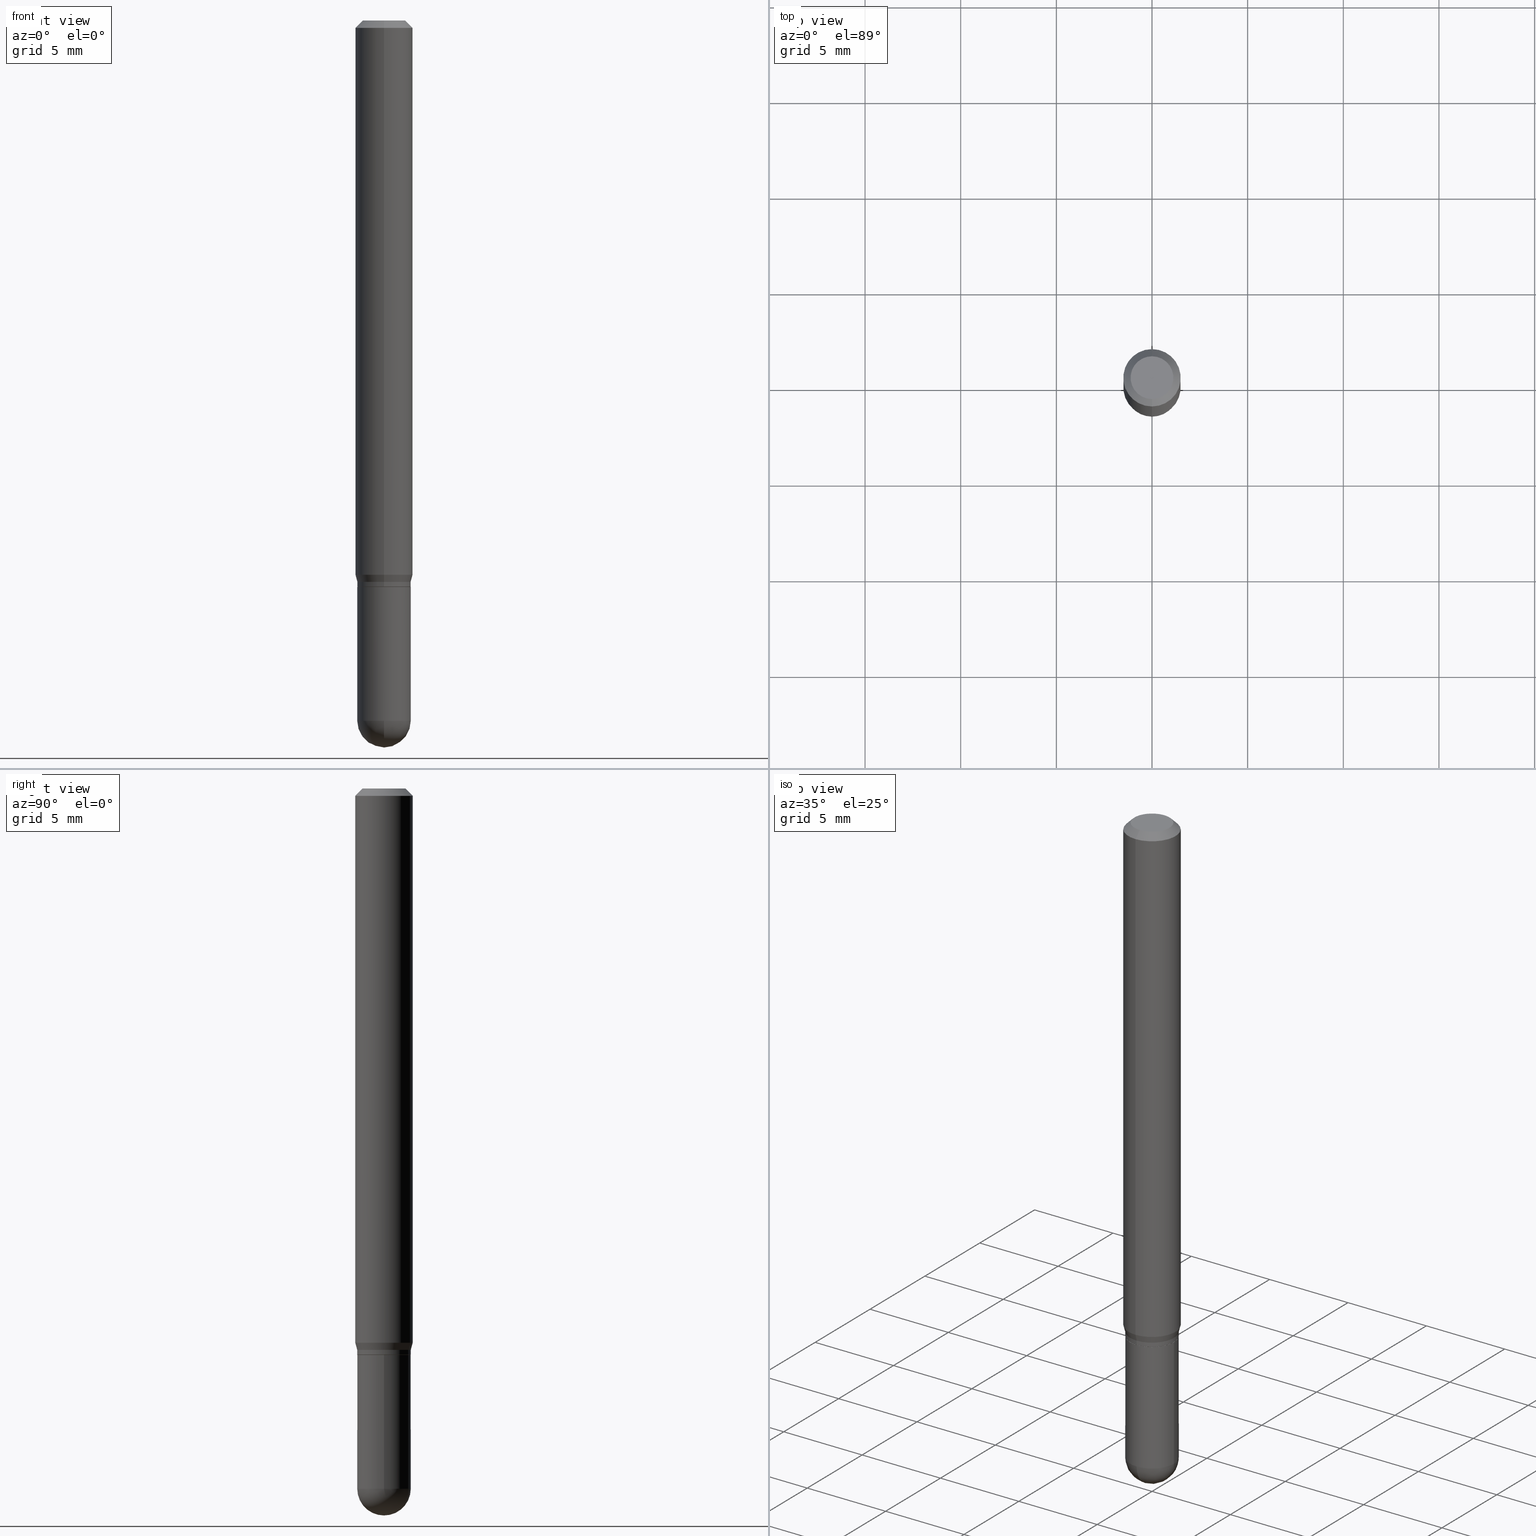
[diagram: canonical four-view strip — front | top / right | iso, engineering-drawing reading convention]
A machine part, canonical four-view strip (front | top / right | iso — engineering-drawing reading convention). The complete STEP part file that produces these views, byte-faithful:
ISO-10303-21;
HEADER;
FILE_DESCRIPTION (( 'STEP AP203' ),
    '1' );
FILE_NAME ('02977.STEP',
    '2024-03-07T22:15:55',
    ( '' ),
    ( '' ),
    'SwSTEP 2.0',
    'SolidWorks 2023',
    '' );
FILE_SCHEMA (( 'CONFIG_CONTROL_DESIGN' ));
ENDSEC;

DATA;
#1 = ORIENTED_EDGE ( 'NONE', *, *, #266, .F. ) ;
#2 = AXIS2_PLACEMENT_3D ( 'NONE', #252, #88, #367 ) ;
#3 = PERSON_AND_ORGANIZATION_ROLE ( 'design_owner' ) ;
#4 = CARTESIAN_POINT ( 'NONE',  ( 2.849949346728157749E-29, -4.068972352287801446E-15, -1.165399999999999991 ) ) ;
#5 = VERTEX_POINT ( 'NONE', #387 ) ;
#6 = DIRECTION ( 'NONE',  ( 2.445432111437345549E-29, -3.491533887810517591E-15, -1.000000000000000000 ) ) ;
#7 = ORIENTED_EDGE ( 'NONE', *, *, #89, .T. ) ;
#8 = CARTESIAN_POINT ( 'NONE',  ( -4.123439461173739834E-16, -0.05904999999999999832, 2.061750760752110574E-16 ) ) ;
#9 = VERTEX_POINT ( 'NONE', #27 ) ;
#10 = CIRCLE ( 'NONE', #194, 0.05510000000000001702 ) ;
#11 = ADVANCED_FACE ( 'NONE', ( #343 ), #320, .T. ) ;
#12 = DIRECTION ( 'NONE',  ( -2.445432111437345549E-29, 3.491533887810517197E-15, 1.000000000000000000 ) ) ;
#13 = EDGE_CURVE ( 'NONE', #127, #473, #128, .T. ) ;
#14 = PLANE ( 'NONE',  #111 ) ;
#15 = CC_DESIGN_PERSON_AND_ORGANIZATION_ASSIGNMENT ( #72, #3, ( #394 ) ) ;
#16 = DIRECTION ( 'NONE',  ( 1.000000000000000000, -7.105427357601001070E-15, 4.926315508542082329E-29 ) ) ;
#17 = VECTOR ( 'NONE', #363, 39.37007874015748143 ) ;
#18 = DIRECTION ( 'NONE',  ( -6.982962677686265133E-15, -1.000000000000000000, 3.491533887810517591E-15 ) ) ;
#19 = CYLINDRICAL_SURFACE ( 'NONE', #280, 0.05510000000000006559 ) ;
#20 = CARTESIAN_POINT ( 'NONE',  ( -0.05510000000000001702, -4.158589433376571291E-15, -1.440999999999999837 ) ) ;
#21 = EDGE_LOOP ( 'NONE', ( #459, #277, #250, #322 ) ) ;
#22 = SPHERICAL_SURFACE ( 'NONE', #135, 0.05509999999999996151 ) ;
#23 = VECTOR ( 'NONE', #123, 39.37007874015748143 ) ;
#24 = DIRECTION ( 'NONE',  ( -1.000000000000000000, 6.982962677686265922E-15, -4.883557194083112340E-29 ) ) ;
#25 = ORIENTED_EDGE ( 'NONE', *, *, #428, .T. ) ;
#26 = DATE_AND_TIME ( #315, #94 ) ;
#27 = CARTESIAN_POINT ( 'NONE',  ( 0.05510000000000000314, -4.453733595828315821E-15, -1.165399999999999991 ) ) ;
#28 = DATE_AND_TIME ( #308, #302 ) ;
#29 = AXIS2_PLACEMENT_3D ( 'NONE', #144, #53, #419 ) ;
#30 = AXIS2_PLACEMENT_3D ( 'NONE', #45, #370, #405 ) ;
#31 = CARTESIAN_POINT ( 'NONE',  ( 3.915090474038502304E-16, 0.05509999999999495857, -1.441000000000000059 ) ) ;
#32 = VERTEX_POINT ( 'NONE', #393 ) ;
#33 = APPLICATION_CONTEXT ( 'configuration controlled 3d designs of mechanical parts and assemblies' ) ;
#34 =( NAMED_UNIT ( * ) SI_UNIT ( $, .STERADIAN. ) SOLID_ANGLE_UNIT ( ) );
#35 = DIRECTION ( 'NONE',  ( -2.445432111437345549E-29, 3.491533887810517591E-15, 1.000000000000000000 ) ) ;
#36 = DIRECTION ( 'NONE',  ( -6.982962677686265922E-15, -1.000000000000000000, 2.501692301890350751E-15 ) ) ;
#37 = CONICAL_SURFACE ( 'NONE', #192, 0.05460000000000000270, 0.7853981633974739252 ) ;
#38 = DIRECTION ( 'NONE',  ( -2.445432111437345549E-29, 3.491533887810517591E-15, 1.000000000000000000 ) ) ;
#39 = ADVANCED_FACE ( 'NONE', ( #429 ), #235, .T. ) ;
#40 = DIRECTION ( 'NONE',  ( -2.445432111437345549E-29, 3.491533887810517591E-15, 1.000000000000000000 ) ) ;
#41 = FACE_OUTER_BOUND ( 'NONE', #314, .T. ) ;
#42 = APPROVAL_PERSON_ORGANIZATION ( #158, #161, #283 ) ;
#43 = AXIS2_PLACEMENT_3D ( 'NONE', #163, #431, #193 ) ;
#44 = VECTOR ( 'NONE', #222, 39.37007874015748143 ) ;
#45 = CARTESIAN_POINT ( 'NONE',  ( 3.668148167156040884E-31, -5.237300831715808113E-17, -0.01500000000000009139 ) ) ;
#46 = DIRECTION ( 'NONE',  ( -6.982962677686266711E-15, -1.000000000000000000, 2.478990919840526156E-15 ) ) ;
#47 = ORIENTED_EDGE ( 'NONE', *, *, #350, .F. ) ;
#48 = FACE_OUTER_BOUND ( 'NONE', #461, .T. ) ;
#49 = AXIS2_PLACEMENT_3D ( 'NONE', #218, #205, #129 ) ;
#50 = CARTESIAN_POINT ( 'NONE',  ( 2.241544163518574248E-45, -3.200427184768119110E-31, -9.166249813416686036E-17 ) ) ;
#51 = CIRCLE ( 'NONE', #372, 0.05510000000000006559 ) ;
#52 = EDGE_LOOP ( 'NONE', ( #179, #134, #118, #1 ) ) ;
#53 = DIRECTION ( 'NONE',  ( -2.445468806185136597E-29, 3.491481338843145583E-15, 1.000000000000000000 ) ) ;
#54 = ADVANCED_FACE ( 'NONE', ( #117 ), #196, .T. ) ;
#55 = CC_DESIGN_PERSON_AND_ORGANIZATION_ASSIGNMENT ( #358, #151, ( #256 ) ) ;
#56 = DIRECTION ( 'NONE',  ( -2.445468806185136597E-29, 3.491481338843145583E-15, 1.000000000000000000 ) ) ;
#57 = VERTEX_POINT ( 'NONE', #440 ) ;
#58 = AXIS2_PLACEMENT_3D ( 'NONE', #275, #244, #403 ) ;
#59 = CYLINDRICAL_SURFACE ( 'NONE', #355, 0.05510000000000006559 ) ;
#60 = ORIENTED_EDGE ( 'NONE', *, *, #509, .T. ) ;
#61 = DIRECTION ( 'NONE',  ( -6.982962677686265922E-15, -1.000000000000000000, 3.491533887810517591E-15 ) ) ;
#62 = APPROVAL_DATE_TIME ( #396, #450 ) ;
#63 = CC_DESIGN_SECURITY_CLASSIFICATION ( #432, ( #478 ) ) ;
#64 = DIRECTION ( 'NONE',  ( -6.982962677686265133E-15, -1.000000000000000000, 3.491533887810517591E-15 ) ) ;
#65 = EDGE_CURVE ( 'NONE', #349, #420, #360, .T. ) ;
#66 = AXIS2_PLACEMENT_3D ( 'NONE', #4, #357, #78 ) ;
#67 = CIRCLE ( 'NONE', #167, 0.05510000000000001702 ) ;
#68 = ORIENTED_EDGE ( 'NONE', *, *, #84, .T. ) ;
#69 = PERSON_AND_ORGANIZATION ( #208, #499 ) ;
#70 = CARTESIAN_POINT ( 'NONE',  ( -0.05510000000000001702, 3.915090474038153233E-16, -2.710333234730453480E-30 ) ) ;
#71 = EDGE_LOOP ( 'NONE', ( #436, #185, #501, #103 ) ) ;
#72 = PERSON_AND_ORGANIZATION ( #208, #499 ) ;
#73 = CARTESIAN_POINT ( 'NONE',  ( 0.000000000000000000, 0.000000000000000000, 0.000000000000000000 ) ) ;
#74 = ORIENTED_EDGE ( 'NONE', *, *, #198, .F. ) ;
#75 = EDGE_CURVE ( 'NONE', #258, #401, #202, .T. ) ;
#76 = APPROVAL_ROLE ( '' ) ;
#77 = ADVANCED_FACE ( 'NONE', ( #397 ), #321, .T. ) ;
#78 = DIRECTION ( 'NONE',  ( 1.000000000000000000, -6.982962677686274599E-15, 0.000000000000000000 ) ) ;
#79 = CIRCLE ( 'NONE', #470, 0.05904999999999999832 ) ;
#80 = LINE ( 'NONE', #482, #23 ) ;
#81 = ORIENTED_EDGE ( 'NONE', *, *, #281, .T. ) ;
#82 = FACE_OUTER_BOUND ( 'NONE', #71, .T. ) ;
#83 = CARTESIAN_POINT ( 'NONE',  ( 2.789402677853648417E-29, -3.982647455606926510E-15, -1.140658399310103155 ) ) ;
#84 = EDGE_CURVE ( 'NONE', #217, #288, #79, .T. ) ;
#85 = AXIS2_PLACEMENT_3D ( 'NONE', #105, #35, #64 ) ;
#86 = LINE ( 'NONE', #8, #371 ) ;
#87 = ORIENTED_EDGE ( 'NONE', *, *, #174, .F. ) ;
#88 = DIRECTION ( 'NONE',  ( -2.445432111437345549E-29, 3.491533887810517197E-15, 1.000000000000000000 ) ) ;
#89 = EDGE_CURVE ( 'NONE', #181, #285, #157, .T. ) ;
#90 = DIRECTION ( 'NONE',  ( -2.445432111437345549E-29, 3.491533887810517591E-15, 1.000000000000000000 ) ) ;
#91 = CIRCLE ( 'NONE', #443, 0.04404999999999999888 ) ;
#92 = CIRCLE ( 'NONE', #391, 0.05509999999999996151 ) ;
#93 = DIRECTION ( 'NONE',  ( -6.982962677686266711E-15, -1.000000000000000000, 2.478990919840526156E-15 ) ) ;
#94 = LOCAL_TIME ( 17, 15, 55.00000000000000000, #106 ) ;
#95 = EDGE_LOOP ( 'NONE', ( #270, #219, #47, #380 ) ) ;
#96 = PLANE ( 'NONE',  #138 ) ;
#97 = VERTEX_POINT ( 'NONE', #31 ) ;
#98 = DIMENSIONAL_EXPONENTS ( 1.000000000000000000, 0.000000000000000000, 0.000000000000000000, 0.000000000000000000, 0.000000000000000000, 0.000000000000000000, 0.000000000000000000 ) ;
#99 = EDGE_CURVE ( 'NONE', #318, #438, #337, .T. ) ;
#100 = EDGE_CURVE ( 'NONE', #473, #32, #510, .T. ) ;
#101 = CARTESIAN_POINT ( 'NONE',  ( 3.847612435405418371E-16, 0.05509999999999593695, -1.165399999999999991 ) ) ;
#102 = DIRECTION ( 'NONE',  ( -6.982962677686265922E-15, -1.000000000000000000, 4.957981839681061778E-15 ) ) ;
#103 = ORIENTED_EDGE ( 'NONE', *, *, #421, .F. ) ;
#104 = CIRCLE ( 'NONE', #66, 0.05510000000000000314 ) ;
#105 = CARTESIAN_POINT ( 'NONE',  ( 2.241544163518574248E-45, -3.200427184768119110E-31, -9.166249813416686036E-17 ) ) ;
#106 = COORDINATED_UNIVERSAL_TIME_OFFSET ( 5, 0, .BEHIND. ) ;
#107 = LINE ( 'NONE', #276, #211 ) ;
#108 = DATE_AND_TIME ( #113, #149 ) ;
#109 = AXIS2_PLACEMENT_3D ( 'NONE', #426, #323, #399 ) ;
#110 = CARTESIAN_POINT ( 'NONE',  ( 2.825452261554708794E-29, -4.034118253976272015E-15, -1.155399999999999983 ) ) ;
#111 = AXIS2_PLACEMENT_3D ( 'NONE', #407, #413, #373 ) ;
#112 = ORIENTED_EDGE ( 'NONE', *, *, #408, .T. ) ;
#113 = CALENDAR_DATE ( 2024, 7, 3 ) ;
#114 = CARTESIAN_POINT ( 'NONE',  ( 2.789402677853648417E-29, -3.982647455606926510E-15, -1.140658399310103155 ) ) ;
#115 = CC_DESIGN_DATE_AND_TIME_ASSIGNMENT ( #434, #311, ( #256 ) ) ;
#116 = COORDINATED_UNIVERSAL_TIME_OFFSET ( 5, 0, .BEHIND. ) ;
#117 = FACE_OUTER_BOUND ( 'NONE', #206, .T. ) ;
#118 = ORIENTED_EDGE ( 'NONE', *, *, #160, .T. ) ;
#119 = DIRECTION ( 'NONE',  ( -2.445432111437345549E-29, 3.491533887810517591E-15, 1.000000000000000000 ) ) ;
#120 = VECTOR ( 'NONE', #159, 39.37007874015748143 ) ;
#121 = ORIENTED_EDGE ( 'NONE', *, *, #350, .T. ) ;
#122 = AXIS2_PLACEMENT_3D ( 'NONE', #287, #444, #446 ) ;
#123 = DIRECTION ( 'NONE',  ( -2.445432111437345549E-29, 3.491533887810517197E-15, 1.000000000000000000 ) ) ;
#124 = ORIENTED_EDGE ( 'NONE', *, *, #75, .F. ) ;
#125 = CARTESIAN_POINT ( 'NONE',  ( 2.849906582669082703E-29, -4.069033592854377143E-15, -1.165399999999999991 ) ) ;
#126 = CARTESIAN_POINT ( 'NONE',  ( 4.055422664351054867E-16, 0.05509999999999602716, -1.155399999999999983 ) ) ;
#127 = VERTEX_POINT ( 'NONE', #389 ) ;
#128 = CIRCLE ( 'NONE', #245, 0.05460000000000000270 ) ;
#129 = DIRECTION ( 'NONE',  ( 1.000000000000000000, -6.982962677686272233E-15, 0.000000000000000000 ) ) ;
#130 = ADVANCED_FACE ( 'NONE', ( #437 ), #203, .T. ) ;
#131 = APPROVAL ( #503, 'UNSPECIFIED' ) ;
#132 = CARTESIAN_POINT ( 'NONE',  ( 3.519208583459403574E-29, -5.037972413136274752E-15, -1.441000000000000059 ) ) ;
#133 = DIRECTION ( 'NONE',  ( 1.000000000000000000, -6.982962677686272233E-15, 0.000000000000000000 ) ) ;
#134 = ORIENTED_EDGE ( 'NONE', *, *, #340, .T. ) ;
#135 = AXIS2_PLACEMENT_3D ( 'NONE', #132, #460, #102 ) ;
#136 = VECTOR ( 'NONE', #325, 39.37007874015748143 ) ;
#137 = CARTESIAN_POINT ( 'NONE',  ( 3.523920549712781226E-29, -5.031224609272972078E-15, -1.440999999999999837 ) ) ;
#138 = AXIS2_PLACEMENT_3D ( 'NONE', #101, #273, #424 ) ;
#139 = EDGE_CURVE ( 'NONE', #504, #285, #295, .T. ) ;
#140 = ORIENTED_EDGE ( 'NONE', *, *, #100, .F. ) ;
#141 = CARTESIAN_POINT ( 'NONE',  ( 2.825452261554708794E-29, -4.034118253976272015E-15, -1.155399999999999983 ) ) ;
#142 = DIRECTION ( 'NONE',  ( -6.982962677686266711E-15, -1.000000000000000000, 2.478990919840526156E-15 ) ) ;
#143 = EDGE_CURVE ( 'NONE', #9, #420, #104, .T. ) ;
#144 = CARTESIAN_POINT ( 'NONE',  ( 3.523920549712781226E-29, -5.031224609272972078E-15, -1.440999999999999837 ) ) ;
#145 = EDGE_LOOP ( 'NONE', ( #483, #60, #382, #406 ) ) ;
#146 = COORDINATED_UNIVERSAL_TIME_OFFSET ( 5, 0, .BEHIND. ) ;
#147 = VECTOR ( 'NONE', #247, 39.37007874015748143 ) ;
#148 = ORIENTED_EDGE ( 'NONE', *, *, #139, .T. ) ;
#149 = LOCAL_TIME ( 17, 15, 55.00000000000000000, #471 ) ;
#150 = EDGE_CURVE ( 'NONE', #420, #9, #416, .T. ) ;
#151 = PERSON_AND_ORGANIZATION_ROLE ( 'creator' ) ;
#152 = CC_DESIGN_PERSON_AND_ORGANIZATION_ASSIGNMENT ( #241, #464, ( #478 ) ) ;
#153 = LINE ( 'NONE', #463, #505 ) ;
#154 = VERTEX_POINT ( 'NONE', #324 ) ;
#155 = ADVANCED_FACE ( 'NONE', ( #474 ), #402, .T. ) ;
#156 = APPROVAL_DATE_TIME ( #108, #161 ) ;
#157 = LINE ( 'NONE', #199, #120 ) ;
#158 = PERSON_AND_ORGANIZATION ( #208, #499 ) ;
#159 = DIRECTION ( 'NONE',  ( -2.445432111437345549E-29, 3.491533887810517197E-15, 1.000000000000000000 ) ) ;
#160 = EDGE_CURVE ( 'NONE', #504, #318, #153, .T. ) ;
#161 = APPROVAL ( #319, 'UNSPECIFIED' ) ;
#162 =( NAMED_UNIT ( * ) PLANE_ANGLE_UNIT ( ) SI_UNIT ( $, .RADIAN. ) );
#163 = CARTESIAN_POINT ( 'NONE',  ( 2.849949346728157749E-29, -4.068972352287801446E-15, -1.165399999999999991 ) ) ;
#164 = LINE ( 'NONE', #166, #136 ) ;
#165 = ORIENTED_EDGE ( 'NONE', *, *, #266, .T. ) ;
#166 = CARTESIAN_POINT ( 'NONE',  ( 3.879563337250431690E-16, 0.05459999999999592957, -1.165399999999999991 ) ) ;
#167 = AXIS2_PLACEMENT_3D ( 'NONE', #303, #56, #229 ) ;
#168 = VECTOR ( 'NONE', #284, 39.37007874015748143 ) ;
#169 = ORIENTED_EDGE ( 'NONE', *, *, #248, .T. ) ;
#170 = CC_DESIGN_APPROVAL ( #161, ( #256 ) ) ;
#171 = FACE_OUTER_BOUND ( 'NONE', #187, .T. ) ;
#172 = DIRECTION ( 'NONE',  ( -2.445432111437345549E-29, 3.491533887810517591E-15, 1.000000000000000000 ) ) ;
#173 = CARTESIAN_POINT ( 'NONE',  ( 4.123439461173743285E-16, 0.05904999999999994975, -0.01500000000000029955 ) ) ;
#174 = EDGE_CURVE ( 'NONE', #32, #504, #107, .T. ) ;
#175 = CC_DESIGN_PERSON_AND_ORGANIZATION_ASSIGNMENT ( #392, #239, ( #478 ) ) ;
#176 = CONICAL_SURFACE ( 'NONE', #410, 0.05510000000000006559, 0.2617993877991499629 ) ;
#177 = LINE ( 'NONE', #381, #44 ) ;
#178 = CARTESIAN_POINT ( 'NONE',  ( 0.000000000000000000, 0.000000000000000000, 0.000000000000000000 ) ) ;
#179 = ORIENTED_EDGE ( 'NONE', *, *, #479, .F. ) ;
#180 = CYLINDRICAL_SURFACE ( 'NONE', #182, 0.05510000000000001702 ) ;
#181 = VERTEX_POINT ( 'NONE', #409 ) ;
#182 = AXIS2_PLACEMENT_3D ( 'NONE', #178, #261, #415 ) ;
#183 = AXIS2_PLACEMENT_3D ( 'NONE', #497, #268, #142 ) ;
#184 = DIRECTION ( 'NONE',  ( -6.982962677686266711E-15, -1.000000000000000000, 2.478990919840526156E-15 ) ) ;
#185 = ORIENTED_EDGE ( 'NONE', *, *, #293, .T. ) ;
#186 = CARTESIAN_POINT ( 'NONE',  ( 2.848683866613363896E-29, -4.067287825910471177E-15, -1.164899999999999824 ) ) ;
#187 = EDGE_LOOP ( 'NONE', ( #243, #227 ) ) ;
#188 = DATE_TIME_ROLE ( 'classification_date' ) ;
#189 = CARTESIAN_POINT ( 'NONE',  ( 2.849906582669082703E-29, -4.069033592854377143E-15, -1.165399999999999991 ) ) ;
#190 = ADVANCED_FACE ( 'NONE', ( #486 ), #14, .F. ) ;
#191 = LENGTH_MEASURE_WITH_UNIT ( LENGTH_MEASURE( 0.02539999999999999897 ), #456 );
#192 = AXIS2_PLACEMENT_3D ( 'NONE', #125, #251, #291 ) ;
#193 = DIRECTION ( 'NONE',  ( 1.000000000000000000, -6.982962677686274599E-15, 0.000000000000000000 ) ) ;
#194 = AXIS2_PLACEMENT_3D ( 'NONE', #137, #492, #133 ) ;
#195 = SECURITY_CLASSIFICATION_LEVEL ( 'unclassified' ) ;
#196 = CYLINDRICAL_SURFACE ( 'NONE', #383, 0.05904999999999999832 ) ;
#197 = ADVANCED_FACE ( 'NONE', ( #41 ), #176, .T. ) ;
#198 = EDGE_CURVE ( 'NONE', #5, #9, #296, .T. ) ;
#199 = CARTESIAN_POINT ( 'NONE',  ( 3.915090474038156192E-16, 0.05510000000000006559, -1.923835172183597604E-16 ) ) ;
#200 = APPROVAL_STATUS ( 'not_yet_approved' ) ;
#201 = DIRECTION ( 'NONE',  ( -6.982962677686265922E-15, -1.000000000000000000, 4.957981839681061778E-15 ) ) ;
#202 = CIRCLE ( 'NONE', #85, 0.04404999999999999888 ) ;
#203 = CYLINDRICAL_SURFACE ( 'NONE', #498, 0.05904999999999999832 ) ;
#204 = ORIENTED_EDGE ( 'NONE', *, *, #238, .T. ) ;
#205 = DIRECTION ( 'NONE',  ( -2.445468806185136597E-29, 3.491481338843145583E-15, 1.000000000000000000 ) ) ;
#206 = EDGE_LOOP ( 'NONE', ( #445, #165, #433, #385 ) ) ;
#207 = APPLICATION_CONTEXT ( 'configuration controlled 3d designs of mechanical parts and assemblies' ) ;
#208 = PERSON ( 'UNSPECIFIED', 'UNSPECIFIED', 'UNSPECIFIED', ('UNSPECIFIED'), ('UNSPECIFIED'), ('UNSPECIFIED') ) ;
#209 = CARTESIAN_POINT ( 'NONE',  ( 2.825452261554708794E-29, -4.034118253976272015E-15, -1.155399999999999983 ) ) ;
#210 = LOCAL_TIME ( 17, 15, 55.00000000000000000, #508 ) ;
#211 = VECTOR ( 'NONE', #12, 39.37007874015748143 ) ;
#212 = CIRCLE ( 'NONE', #29, 0.05510000000000001702 ) ;
#213 = DIRECTION ( 'NONE',  ( -6.982962677686265922E-15, -1.000000000000000000, 4.626330217890369336E-15 ) ) ;
#214 = EDGE_CURVE ( 'NONE', #258, #217, #215, .T. ) ;
#215 = LINE ( 'NONE', #173, #442 ) ;
#216 = CC_DESIGN_PERSON_AND_ORGANIZATION_ASSIGNMENT ( #361, #386, ( #432 ) ) ;
#217 = VERTEX_POINT ( 'NONE', #375 ) ;
#218 = CARTESIAN_POINT ( 'NONE',  ( 3.523920549712781226E-29, -5.031224609272972078E-15, -1.440999999999999837 ) ) ;
#219 = ORIENTED_EDGE ( 'NONE', *, *, #487, .T. ) ;
#220 = AXIS2_PLACEMENT_3D ( 'NONE', #333, #119, #259 ) ;
#221 = CC_DESIGN_APPROVAL ( #450, ( #478 ) ) ;
#222 = DIRECTION ( 'NONE',  ( -4.851104656540964275E-15, -0.7071067811865500152, -0.7071067811865450192 ) ) ;
#223 = EDGE_CURVE ( 'NONE', #288, #217, #423, .T. ) ;
#224 = DIRECTION ( 'NONE',  ( -2.445432111437345549E-29, 3.491533887810517591E-15, 1.000000000000000000 ) ) ;
#225 = EDGE_LOOP ( 'NONE', ( #475, #365 ) ) ;
#226 = FACE_OUTER_BOUND ( 'NONE', #145, .T. ) ;
#227 = ORIENTED_EDGE ( 'NONE', *, *, #13, .F. ) ;
#228 = AXIS2_PLACEMENT_3D ( 'NONE', #110, #286, #279 ) ;
#229 = DIRECTION ( 'NONE',  ( 1.000000000000000000, -6.982962677686272233E-15, 0.000000000000000000 ) ) ;
#230 = ORIENTED_EDGE ( 'NONE', *, *, #198, .T. ) ;
#231 = CARTESIAN_POINT ( 'NONE',  ( 0.000000000000000000, 0.000000000000000000, 0.000000000000000000 ) ) ;
#232 = ADVANCED_FACE ( 'NONE', ( #171 ), #328, .F. ) ;
#233 = ORIENTED_EDGE ( 'NONE', *, *, #150, .F. ) ;
#234 = PERSON_AND_ORGANIZATION ( #208, #499 ) ;
#235 = SPHERICAL_SURFACE ( 'NONE', #307, 0.05509999999999996151 ) ;
#236 = MECHANICAL_CONTEXT ( 'NONE', #33, 'mechanical' ) ;
#237 = CARTESIAN_POINT ( 'NONE',  ( 3.668148167156040884E-31, -5.237300831715808113E-17, -0.01500000000000009139 ) ) ;
#238 = EDGE_CURVE ( 'NONE', #473, #127, #254, .T. ) ;
#239 = PERSON_AND_ORGANIZATION_ROLE ( 'creator' ) ;
#240 = DIRECTION ( 'NONE',  ( -2.445432111437345549E-29, 3.491533887810517591E-15, 1.000000000000000000 ) ) ;
#241 = PERSON_AND_ORGANIZATION ( #208, #499 ) ;
#242 = DIRECTION ( 'NONE',  ( 1.000000000000000000, -6.982962677686265922E-15, 4.883557194083112901E-29 ) ) ;
#243 = ORIENTED_EDGE ( 'NONE', *, *, #238, .F. ) ;
#244 = DIRECTION ( 'NONE',  ( -2.445468806185136597E-29, 3.491481338843145583E-15, 1.000000000000000000 ) ) ;
#245 = AXIS2_PLACEMENT_3D ( 'NONE', #189, #435, #36 ) ;
#246 = EDGE_LOOP ( 'NONE', ( #331, #7, #404, #87 ) ) ;
#247 = DIRECTION ( 'NONE',  ( -2.445468806185136877E-29, 3.491481338843145188E-15, 1.000000000000000000 ) ) ;
#248 = EDGE_CURVE ( 'NONE', #438, #217, #80, .T. ) ;
#249 = CC_DESIGN_DATE_AND_TIME_ASSIGNMENT ( #26, #188, ( #432 ) ) ;
#250 = ORIENTED_EDGE ( 'NONE', *, *, #100, .T. ) ;
#251 = DIRECTION ( 'NONE',  ( -2.445432111437345549E-29, 3.491533887810517591E-15, 1.000000000000000000 ) ) ;
#252 = CARTESIAN_POINT ( 'NONE',  ( 2.849906582669082703E-29, -4.069033592854377143E-15, -1.165399999999999991 ) ) ;
#253 = VECTOR ( 'NONE', #341, 39.37007874015748854 ) ;
#254 = CIRCLE ( 'NONE', #220, 0.05460000000000000270 ) ;
#255 = ADVANCED_FACE ( 'NONE', ( #485 ), #37, .T. ) ;
#256 = PRODUCT_DEFINITION ( 'UNKNOWN', '', #478, #338 ) ;
#257 = CARTESIAN_POINT ( 'NONE',  ( 3.519208583459403574E-29, -5.037972413136274752E-15, -1.441000000000000059 ) ) ;
#258 = VERTEX_POINT ( 'NONE', #448 ) ;
#259 = DIRECTION ( 'NONE',  ( -6.982962677686265922E-15, -1.000000000000000000, 2.501692301890350751E-15 ) ) ;
#260 = MANIFOLD_SOLID_BREP ( 'Body-Move/Copy2[1]', #455 ) ;
#261 = DIRECTION ( 'NONE',  ( -2.445468806185136597E-29, 3.491481338843145583E-15, 1.000000000000000000 ) ) ;
#262 = APPROVAL_PERSON_ORGANIZATION ( #69, #450, #76 ) ;
#263 = AXIS2_PLACEMENT_3D ( 'NONE', #488, #172, #449 ) ;
#264 = CARTESIAN_POINT ( 'NONE',  ( -3.847612435404854829E-16, -0.05510000000000410403, -1.155399999999999761 ) ) ;
#265 = ORIENTED_EDGE ( 'NONE', *, *, #65, .F. ) ;
#266 = EDGE_CURVE ( 'NONE', #438, #318, #480, .T. ) ;
#267 = CARTESIAN_POINT ( 'NONE',  ( -3.536586717851222218E-16, -0.04404999999999999888, 6.213956962388643021E-17 ) ) ;
#268 = DIRECTION ( 'NONE',  ( -2.445432111437345549E-29, 3.491533887810517591E-15, 1.000000000000000000 ) ) ;
#269 = FACE_OUTER_BOUND ( 'NONE', #246, .T. ) ;
#270 = ORIENTED_EDGE ( 'NONE', *, *, #293, .F. ) ;
#271 = ADVANCED_FACE ( 'NONE', ( #48 ), #354, .T. ) ;
#272 = AXIS2_PLACEMENT_3D ( 'NONE', #366, #6, #309 ) ;
#273 = DIRECTION ( 'NONE',  ( 2.438088387897960049E-29, -3.491481338843145188E-15, -1.000000000000000000 ) ) ;
#274 = ORIENTED_EDGE ( 'NONE', *, *, #99, .T. ) ;
#275 = CARTESIAN_POINT ( 'NONE',  ( 0.000000000000000000, 0.000000000000000000, 0.000000000000000000 ) ) ;
#276 = CARTESIAN_POINT ( 'NONE',  ( -3.847612435405137340E-16, -0.05510000000000006559, 1.923835172183597604E-16 ) ) ;
#277 = ORIENTED_EDGE ( 'NONE', *, *, #13, .T. ) ;
#278 = CIRCLE ( 'NONE', #454, 0.05509999999999996151 ) ;
#279 = DIRECTION ( 'NONE',  ( -6.982962677686266711E-15, -1.000000000000000000, 2.478990919840526156E-15 ) ) ;
#280 = AXIS2_PLACEMENT_3D ( 'NONE', #452, #90, #347 ) ;
#281 = EDGE_CURVE ( 'NONE', #5, #97, #329, .T. ) ;
#282 = ORIENTED_EDGE ( 'NONE', *, *, #223, .F. ) ;
#283 = APPROVAL_ROLE ( '' ) ;
#284 = DIRECTION ( 'NONE',  ( -4.937700262164674260E-15, -0.7071067811865632269, 0.7071067811865319186 ) ) ;
#285 = VERTEX_POINT ( 'NONE', #126 ) ;
#286 = DIRECTION ( 'NONE',  ( -2.445432111437345549E-29, 3.491533887810517591E-15, 1.000000000000000000 ) ) ;
#287 = CARTESIAN_POINT ( 'NONE',  ( 3.668148167156040884E-31, -5.237300831715808113E-17, -0.01500000000000009139 ) ) ;
#288 = VERTEX_POINT ( 'NONE', #334 ) ;
#289 = CARTESIAN_POINT ( 'NONE',  ( -4.123439461173462253E-16, -0.05905000000000400207, -1.140658399310102933 ) ) ;
#290 = SHAPE_DEFINITION_REPRESENTATION ( #316, #313 ) ;
#291 = DIRECTION ( 'NONE',  ( -6.982962677686265922E-15, -1.000000000000000000, 2.501692301890350751E-15 ) ) ;
#292 = EDGE_CURVE ( 'NONE', #318, #288, #86, .T. ) ;
#293 = EDGE_CURVE ( 'NONE', #154, #97, #92, .T. ) ;
#294 = DIRECTION ( 'NONE',  ( -2.445432111437345549E-29, 3.491533887810517591E-15, 1.000000000000000000 ) ) ;
#295 = CIRCLE ( 'NONE', #228, 0.05510000000000006559 ) ;
#296 = LINE ( 'NONE', #451, #147 ) ;
#297 = CARTESIAN_POINT ( 'NONE',  ( 3.915090474038438703E-16, 0.05509999999999602716, -1.155399999999999983 ) ) ;
#298 = CARTESIAN_POINT ( 'NONE',  ( 3.519208583459403574E-29, -5.037972413136274752E-15, -1.441000000000000059 ) ) ;
#299 = ORIENTED_EDGE ( 'NONE', *, *, #143, .F. ) ;
#300 = CC_DESIGN_APPROVAL ( #131, ( #432 ) ) ;
#301 = AXIS2_PLACEMENT_3D ( 'NONE', #114, #317, #359 ) ;
#302 = LOCAL_TIME ( 17, 15, 55.00000000000000000, #146 ) ;
#303 = CARTESIAN_POINT ( 'NONE',  ( 3.523920549712781226E-29, -5.031224609272972078E-15, -1.440999999999999837 ) ) ;
#304 = ORIENTED_EDGE ( 'NONE', *, *, #99, .F. ) ;
#305 = DIRECTION ( 'NONE',  ( -2.445432111437345549E-29, 3.491533887810517591E-15, 1.000000000000000000 ) ) ;
#306 = ORIENTED_EDGE ( 'NONE', *, *, #348, .T. ) ;
#307 = AXIS2_PLACEMENT_3D ( 'NONE', #512, #242, #201 ) ;
#308 = CALENDAR_DATE ( 2024, 7, 3 ) ;
#309 = DIRECTION ( 'NONE',  ( 6.982962677686265922E-15, 1.000000000000000000, -3.505890868245046092E-15 ) ) ;
#310 = EDGE_CURVE ( 'NONE', #127, #181, #164, .T. ) ;
#311 = DATE_TIME_ROLE ( 'creation_date' ) ;
#312 = DIRECTION ( 'NONE',  ( -1.807323732225328167E-15, -0.2588190451025179084, 0.9659258262890690894 ) ) ;
#313 = ADVANCED_BREP_SHAPE_REPRESENTATION ( '02977', ( #260, #427, #109 ), #417 ) ;
#314 = EDGE_LOOP ( 'NONE', ( #148, #368, #304, #441 ) ) ;
#315 = CALENDAR_DATE ( 2024, 7, 3 ) ;
#316 = PRODUCT_DEFINITION_SHAPE ( 'NONE', 'NONE',  #256 ) ;
#317 = DIRECTION ( 'NONE',  ( -2.445432111437345549E-29, 3.491533887810517591E-15, 1.000000000000000000 ) ) ;
#318 = VERTEX_POINT ( 'NONE', #289 ) ;
#319 = APPROVAL_STATUS ( 'not_yet_approved' ) ;
#320 = CONICAL_SURFACE ( 'NONE', #183, 0.05510000000000006559, 0.2617993877991499629 ) ;
#321 = CYLINDRICAL_SURFACE ( 'NONE', #58, 0.05510000000000001702 ) ;
#322 = ORIENTED_EDGE ( 'NONE', *, *, #509, .F. ) ;
#323 = DIRECTION ( 'NONE',  ( 0.000000000000000000, 0.000000000000000000, 1.000000000000000000 ) ) ;
#324 = CARTESIAN_POINT ( 'NONE',  ( 3.651597931553515351E-29, -5.233726936838182882E-15, -1.496099999999999985 ) ) ;
#325 = DIRECTION ( 'NONE',  ( 5.024295867788190974E-15, 0.7071067811865681119, 0.7071067811865270336 ) ) ;
#326 = ORIENTED_EDGE ( 'NONE', *, *, #223, .T. ) ;
#327 = APPROVAL_PERSON_ORGANIZATION ( #234, #131, #430 ) ;
#328 = PLANE ( 'NONE',  #2 ) ;
#329 = CIRCLE ( 'NONE', #49, 0.05510000000000001702 ) ;
#330 = LOCAL_TIME ( 17, 15, 55.00000000000000000, #116 ) ;
#331 = ORIENTED_EDGE ( 'NONE', *, *, #494, .T. ) ;
#332 = ADVANCED_FACE ( 'NONE', ( #476 ), #344, .T. ) ;
#333 = CARTESIAN_POINT ( 'NONE',  ( 2.849906582669082703E-29, -4.069033592854377143E-15, -1.165399999999999991 ) ) ;
#334 = CARTESIAN_POINT ( 'NONE',  ( -4.123439461173736383E-16, -0.05905000000000005383, -0.01499999999999988495 ) ) ;
#335 = ADVANCED_FACE ( 'NONE', ( #82 ), #22, .T. ) ;
#336 = DIRECTION ( 'NONE',  ( 7.105427357601001070E-15, 1.000000000000000000, 0.000000000000000000 ) ) ;
#337 = CIRCLE ( 'NONE', #301, 0.05904999999999999832 ) ;
#338 = DESIGN_CONTEXT ( 'detailed design', #207, 'design' ) ;
#339 = CARTESIAN_POINT ( 'NONE',  ( -3.812697622016416376E-16, -0.05460000000000407583, -1.165399999999999769 ) ) ;
#340 = EDGE_CURVE ( 'NONE', #285, #504, #496, .T. ) ;
#341 = DIRECTION ( 'NONE',  ( 1.839019923739597949E-15, 0.2588190451025246253, 0.9659258262890670910 ) ) ;
#342 = ORIENTED_EDGE ( 'NONE', *, *, #310, .T. ) ;
#343 = FACE_OUTER_BOUND ( 'NONE', #52, .T. ) ;
#344 = CONICAL_SURFACE ( 'NONE', #122, 0.05904999999999999832, 0.7853981633974483900 ) ;
#345 = CLOSED_SHELL ( 'NONE', ( #398, #271, #155, #130, #197, #11, #54, #332, #190, #232, #255, #369 ) ) ;
#346 = AXIS2_PLACEMENT_3D ( 'NONE', #351, #502, #418 ) ;
#347 = DIRECTION ( 'NONE',  ( -6.982962677686266711E-15, -1.000000000000000000, 3.491533887810517985E-15 ) ) ;
#348 = EDGE_CURVE ( 'NONE', #97, #349, #212, .T. ) ;
#349 = VERTEX_POINT ( 'NONE', #20 ) ;
#350 = EDGE_CURVE ( 'NONE', #349, #57, #67, .T. ) ;
#351 = CARTESIAN_POINT ( 'NONE',  ( 2.848683866613363896E-29, -4.067287825910471177E-15, -1.164899999999999824 ) ) ;
#352 = ORIENTED_EDGE ( 'NONE', *, *, #408, .F. ) ;
#353 = ORIENTED_EDGE ( 'NONE', *, *, #428, .F. ) ;
#354 = CONICAL_SURFACE ( 'NONE', #263, 0.05460000000000000270, 0.7853981633974739252 ) ;
#355 = AXIS2_PLACEMENT_3D ( 'NONE', #231, #224, #378 ) ;
#356 = CALENDAR_DATE ( 2024, 7, 3 ) ;
#357 = DIRECTION ( 'NONE',  ( -2.445468806185136597E-29, 3.491481338843145583E-15, 1.000000000000000000 ) ) ;
#358 = PERSON_AND_ORGANIZATION ( #208, #499 ) ;
#359 = DIRECTION ( 'NONE',  ( -6.982962677686265922E-15, -1.000000000000000000, 4.626330217890369336E-15 ) ) ;
#360 = LINE ( 'NONE', #70, #17 ) ;
#361 = PERSON_AND_ORGANIZATION ( #208, #499 ) ;
#362 = AXIS2_PLACEMENT_3D ( 'NONE', #83, #40, #213 ) ;
#363 = DIRECTION ( 'NONE',  ( -2.445468806185136877E-29, 3.491481338843145188E-15, 1.000000000000000000 ) ) ;
#364 = ADVANCED_FACE ( 'NONE', ( #458 ), #96, .F. ) ;
#365 = ORIENTED_EDGE ( 'NONE', *, *, #150, .T. ) ;
#366 = CARTESIAN_POINT ( 'NONE',  ( 3.668148167156040884E-31, -5.237300831715808113E-17, -0.01500000000000009139 ) ) ;
#367 = DIRECTION ( 'NONE',  ( -6.982962677686265922E-15, -1.000000000000000000, 3.491533887810517197E-15 ) ) ;
#368 = ORIENTED_EDGE ( 'NONE', *, *, #479, .T. ) ;
#369 = ADVANCED_FACE ( 'NONE', ( #226 ), #19, .T. ) ;
#370 = DIRECTION ( 'NONE',  ( -2.445432111437345549E-29, 3.491533887810517591E-15, 1.000000000000000000 ) ) ;
#371 = VECTOR ( 'NONE', #376, 39.37007874015748143 ) ;
#372 = AXIS2_PLACEMENT_3D ( 'NONE', #186, #495, #93 ) ;
#373 = DIRECTION ( 'NONE',  ( 6.982962677686265922E-15, 1.000000000000000000, -3.491533887810517197E-15 ) ) ;
#374 = ORIENTED_EDGE ( 'NONE', *, *, #292, .F. ) ;
#375 = CARTESIAN_POINT ( 'NONE',  ( 4.195754854663672017E-16, 0.05904999999999994975, -0.01500000000000029955 ) ) ;
#376 = DIRECTION ( 'NONE',  ( -2.445432111437345549E-29, 3.491533887810517197E-15, 1.000000000000000000 ) ) ;
#377 = PRODUCT_RELATED_PRODUCT_CATEGORY ( 'detail', '', ( #394 ) ) ;
#378 = DIRECTION ( 'NONE',  ( -6.982962677686266711E-15, -1.000000000000000000, 3.491533887810517985E-15 ) ) ;
#379 = CARTESIAN_POINT ( 'NONE',  ( -0.05510000000000000314, -4.158589433376571291E-15, -1.165399999999999991 ) ) ;
#380 = ORIENTED_EDGE ( 'NONE', *, *, #348, .F. ) ;
#381 = CARTESIAN_POINT ( 'NONE',  ( -4.051124067684085231E-16, -0.05905000000000005383, -0.01499999999999988495 ) ) ;
#382 = ORIENTED_EDGE ( 'NONE', *, *, #174, .T. ) ;
#383 = AXIS2_PLACEMENT_3D ( 'NONE', #73, #240, #465 ) ;
#384 = FACE_OUTER_BOUND ( 'NONE', #477, .T. ) ;
#385 = ORIENTED_EDGE ( 'NONE', *, *, #84, .F. ) ;
#386 = PERSON_AND_ORGANIZATION_ROLE ( 'classification_officer' ) ;
#387 = CARTESIAN_POINT ( 'NONE',  ( 0.05510000000000001702, -4.934859724320901137E-15, -1.440999999999999837 ) ) ;
#388 = APPLICATION_PROTOCOL_DEFINITION ( 'international standard', 'config_control_design', 1994, #33 ) ;
#389 = CARTESIAN_POINT ( 'NONE',  ( 3.897326905644436182E-16, 0.05459999999999592957, -1.165399999999999991 ) ) ;
#390 = AXIS2_PLACEMENT_3D ( 'NONE', #141, #422, #184 ) ;
#391 = AXIS2_PLACEMENT_3D ( 'NONE', #257, #16, #336 ) ;
#392 = PERSON_AND_ORGANIZATION ( #208, #499 ) ;
#393 = CARTESIAN_POINT ( 'NONE',  ( -3.847612435404855815E-16, -0.05510000000000418729, -1.164899999999999824 ) ) ;
#394 = PRODUCT ( '02977', '02977', '', ( #236 ) ) ;
#395 = EDGE_LOOP ( 'NONE', ( #353, #124, #511, #68 ) ) ;
#396 = DATE_AND_TIME ( #439, #330 ) ;
#397 = FACE_OUTER_BOUND ( 'NONE', #466, .T. ) ;
#398 = ADVANCED_FACE ( 'NONE', ( #269 ), #59, .T. ) ;
#399 = DIRECTION ( 'NONE',  ( 1.000000000000000000, 0.000000000000000000, 0.000000000000000000 ) ) ;
#400 = CARTESIAN_POINT ( 'NONE',  ( 0.000000000000000000, 0.000000000000000000, 0.000000000000000000 ) ) ;
#401 = VERTEX_POINT ( 'NONE', #267 ) ;
#402 = CONICAL_SURFACE ( 'NONE', #272, 0.05904999999999999832, 0.7853981633974483900 ) ;
#403 = DIRECTION ( 'NONE',  ( 1.000000000000000000, -6.982962677686265922E-15, 4.876176775795935793E-29 ) ) ;
#404 = ORIENTED_EDGE ( 'NONE', *, *, #139, .F. ) ;
#405 = DIRECTION ( 'NONE',  ( -6.982962677686265922E-15, -1.000000000000000000, 3.505890868245046092E-15 ) ) ;
#406 = ORIENTED_EDGE ( 'NONE', *, *, #340, .F. ) ;
#407 = CARTESIAN_POINT ( 'NONE',  ( 3.075995059520799729E-16, 0.04404999999999999888, -1.996333168251367392E-16 ) ) ;
#408 = EDGE_CURVE ( 'NONE', #401, #258, #91, .T. ) ;
#409 = CARTESIAN_POINT ( 'NONE',  ( 3.915090474038436730E-16, 0.05509999999999594389, -1.164900000000000047 ) ) ;
#410 = AXIS2_PLACEMENT_3D ( 'NONE', #209, #294, #46 ) ;
#411 = DIRECTION ( 'NONE',  ( 4.937700262164548042E-15, 0.7071067811865451302, -0.7071067811865499042 ) ) ;
#412 = ORIENTED_EDGE ( 'NONE', *, *, #65, .T. ) ;
#413 = DIRECTION ( 'NONE',  ( 2.445432111437345549E-29, -3.491533887810517197E-15, -1.000000000000000000 ) ) ;
#414 = ORIENTED_EDGE ( 'NONE', *, *, #75, .T. ) ;
#415 = DIRECTION ( 'NONE',  ( 1.000000000000000000, -6.982962677686265922E-15, 4.876176775795935793E-29 ) ) ;
#416 = CIRCLE ( 'NONE', #43, 0.05510000000000000314 ) ;
#417 =( GEOMETRIC_REPRESENTATION_CONTEXT ( 3 ) GLOBAL_UNCERTAINTY_ASSIGNED_CONTEXT ( ( #491 ) ) GLOBAL_UNIT_ASSIGNED_CONTEXT ( ( #467, #162, #34 ) ) REPRESENTATION_CONTEXT ( 'NONE', 'WORKASPACE' ) );
#418 = DIRECTION ( 'NONE',  ( -6.982962677686266711E-15, -1.000000000000000000, 2.478990919840526156E-15 ) ) ;
#419 = DIRECTION ( 'NONE',  ( 1.000000000000000000, -6.982962677686272233E-15, 0.000000000000000000 ) ) ;
#420 = VERTEX_POINT ( 'NONE', #379 ) ;
#421 = EDGE_CURVE ( 'NONE', #57, #5, #10, .T. ) ;
#422 = DIRECTION ( 'NONE',  ( -2.445432111437345549E-29, 3.491533887810517591E-15, 1.000000000000000000 ) ) ;
#423 = CIRCLE ( 'NONE', #30, 0.05904999999999999832 ) ;
#424 = DIRECTION ( 'NONE',  ( -1.000000000000000000, 6.982962677686265922E-15, -4.876176775795935793E-29 ) ) ;
#425 = ORIENTED_EDGE ( 'NONE', *, *, #494, .F. ) ;
#426 = CARTESIAN_POINT ( 'NONE',  ( 0.000000000000000000, 0.000000000000000000, 0.000000000000000000 ) ) ;
#427 = MANIFOLD_SOLID_BREP ( 'Body-Move/Copy2[2]', #345 ) ;
#428 = EDGE_CURVE ( 'NONE', #401, #288, #177, .T. ) ;
#429 = FACE_OUTER_BOUND ( 'NONE', #95, .T. ) ;
#430 = APPROVAL_ROLE ( '' ) ;
#431 = DIRECTION ( 'NONE',  ( -2.445468806185136597E-29, 3.491481338843145583E-15, 1.000000000000000000 ) ) ;
#432 = SECURITY_CLASSIFICATION ( '', '', #195 ) ;
#433 = ORIENTED_EDGE ( 'NONE', *, *, #292, .T. ) ;
#434 = DATE_AND_TIME ( #356, #210 ) ;
#435 = DIRECTION ( 'NONE',  ( -2.445432111437345549E-29, 3.491533887810517591E-15, 1.000000000000000000 ) ) ;
#436 = ORIENTED_EDGE ( 'NONE', *, *, #487, .F. ) ;
#437 = FACE_OUTER_BOUND ( 'NONE', #469, .T. ) ;
#438 = VERTEX_POINT ( 'NONE', #500 ) ;
#439 = CALENDAR_DATE ( 2024, 7, 3 ) ;
#440 = CARTESIAN_POINT ( 'NONE',  ( -3.847612435404779394E-16, -0.05510000000000501996, -1.440999999999999392 ) ) ;
#441 = ORIENTED_EDGE ( 'NONE', *, *, #160, .F. ) ;
#442 = VECTOR ( 'NONE', #411, 39.37007874015748143 ) ;
#443 = AXIS2_PLACEMENT_3D ( 'NONE', #50, #305, #18 ) ;
#444 = DIRECTION ( 'NONE',  ( 2.445432111437345549E-29, -3.491533887810517591E-15, -1.000000000000000000 ) ) ;
#445 = ORIENTED_EDGE ( 'NONE', *, *, #248, .F. ) ;
#446 = DIRECTION ( 'NONE',  ( 6.982962677686265922E-15, 1.000000000000000000, -3.505890868245046092E-15 ) ) ;
#447 = ORIENTED_EDGE ( 'NONE', *, *, #421, .T. ) ;
#448 = CARTESIAN_POINT ( 'NONE',  ( 3.599717260347271507E-16, 0.04404999999999999888, -2.454645658922201879E-16 ) ) ;
#449 = DIRECTION ( 'NONE',  ( -6.982962677686265922E-15, -1.000000000000000000, 2.501692301890350751E-15 ) ) ;
#450 = APPROVAL ( #200, 'UNSPECIFIED' ) ;
#451 = CARTESIAN_POINT ( 'NONE',  ( 0.05510000000000001702, -3.847612435405133888E-16, 2.686773403463561367E-30 ) ) ;
#452 = CARTESIAN_POINT ( 'NONE',  ( 0.000000000000000000, 0.000000000000000000, 0.000000000000000000 ) ) ;
#453 = DIRECTION ( 'NONE',  ( -6.982962677686265922E-15, -1.000000000000000000, 0.000000000000000000 ) ) ;
#454 = AXIS2_PLACEMENT_3D ( 'NONE', #298, #24, #453 ) ;
#455 = CLOSED_SHELL ( 'NONE', ( #462, #335, #364, #39, #77 ) ) ;
#456 =( LENGTH_UNIT ( ) NAMED_UNIT ( * ) SI_UNIT ( $, .METRE. ) );
#457 = ORIENTED_EDGE ( 'NONE', *, *, #214, .F. ) ;
#458 = FACE_OUTER_BOUND ( 'NONE', #225, .T. ) ;
#459 = ORIENTED_EDGE ( 'NONE', *, *, #310, .F. ) ;
#460 = DIRECTION ( 'NONE',  ( 1.000000000000000000, -6.982962677686265922E-15, 4.883557194083112901E-29 ) ) ;
#461 = EDGE_LOOP ( 'NONE', ( #204, #342, #425, #140 ) ) ;
#462 = ADVANCED_FACE ( 'NONE', ( #384 ), #180, .T. ) ;
#463 = CARTESIAN_POINT ( 'NONE',  ( -3.847612435404854829E-16, -0.05510000000000410403, -1.155399999999999761 ) ) ;
#464 = PERSON_AND_ORGANIZATION_ROLE ( 'design_supplier' ) ;
#465 = DIRECTION ( 'NONE',  ( -6.982962677686265922E-15, -1.000000000000000000, 3.491533887810517591E-15 ) ) ;
#466 = EDGE_LOOP ( 'NONE', ( #265, #121, #447, #230, #233 ) ) ;
#467 =( CONVERSION_BASED_UNIT ( 'INCH', #191 ) LENGTH_UNIT ( ) NAMED_UNIT ( #98 ) );
#468 = DIRECTION ( 'NONE',  ( -2.445432111437345549E-29, 3.491533887810517591E-15, 1.000000000000000000 ) ) ;
#469 = EDGE_LOOP ( 'NONE', ( #274, #169, #282, #374 ) ) ;
#470 = AXIS2_PLACEMENT_3D ( 'NONE', #237, #38, #472 ) ;
#471 = COORDINATED_UNIVERSAL_TIME_OFFSET ( 5, 0, .BEHIND. ) ;
#472 = DIRECTION ( 'NONE',  ( -6.982962677686265922E-15, -1.000000000000000000, 3.505890868245046092E-15 ) ) ;
#473 = VERTEX_POINT ( 'NONE', #339 ) ;
#474 = FACE_OUTER_BOUND ( 'NONE', #489, .T. ) ;
#475 = ORIENTED_EDGE ( 'NONE', *, *, #143, .T. ) ;
#476 = FACE_OUTER_BOUND ( 'NONE', #395, .T. ) ;
#477 = EDGE_LOOP ( 'NONE', ( #306, #412, #299, #74, #81 ) ) ;
#478 = PRODUCT_DEFINITION_FORMATION_WITH_SPECIFIED_SOURCE ( 'ANY', '', #394, .NOT_KNOWN. ) ;
#479 = EDGE_CURVE ( 'NONE', #285, #438, #490, .T. ) ;
#480 = CIRCLE ( 'NONE', #362, 0.05904999999999999832 ) ;
#481 = CIRCLE ( 'NONE', #346, 0.05510000000000006559 ) ;
#482 = CARTESIAN_POINT ( 'NONE',  ( 4.195754854663390985E-16, 0.05904999999999999832, -2.061750760752110574E-16 ) ) ;
#483 = ORIENTED_EDGE ( 'NONE', *, *, #89, .F. ) ;
#484 = APPROVAL_DATE_TIME ( #28, #131 ) ;
#485 = FACE_OUTER_BOUND ( 'NONE', #21, .T. ) ;
#486 = FACE_OUTER_BOUND ( 'NONE', #493, .T. ) ;
#487 = EDGE_CURVE ( 'NONE', #154, #57, #278, .T. ) ;
#488 = CARTESIAN_POINT ( 'NONE',  ( 2.849906582669082703E-29, -4.069033592854377143E-15, -1.165399999999999991 ) ) ;
#489 = EDGE_LOOP ( 'NONE', ( #352, #25, #326, #457 ) ) ;
#490 = LINE ( 'NONE', #297, #253 ) ;
#491 = UNCERTAINTY_MEASURE_WITH_UNIT (LENGTH_MEASURE( 1.000000000000000082E-05 ), #467, 'distance_accuracy_value', 'NONE');
#492 = DIRECTION ( 'NONE',  ( -2.445468806185136597E-29, 3.491481338843145583E-15, 1.000000000000000000 ) ) ;
#493 = EDGE_LOOP ( 'NONE', ( #414, #112 ) ) ;
#494 = EDGE_CURVE ( 'NONE', #32, #181, #51, .T. ) ;
#495 = DIRECTION ( 'NONE',  ( -2.445432111437345549E-29, 3.491533887810517591E-15, 1.000000000000000000 ) ) ;
#496 = CIRCLE ( 'NONE', #390, 0.05510000000000006559 ) ;
#497 = CARTESIAN_POINT ( 'NONE',  ( 2.825452261554708794E-29, -4.034118253976272015E-15, -1.155399999999999983 ) ) ;
#498 = AXIS2_PLACEMENT_3D ( 'NONE', #400, #468, #61 ) ;
#499 = ORGANIZATION ( 'UNSPECIFIED', 'UNSPECIFIED', '' ) ;
#500 = CARTESIAN_POINT ( 'NONE',  ( 4.195754854663668566E-16, 0.05904999999999599458, -1.140658399310103377 ) ) ;
#501 = ORIENTED_EDGE ( 'NONE', *, *, #281, .F. ) ;
#502 = DIRECTION ( 'NONE',  ( -2.445432111437345549E-29, 3.491533887810517591E-15, 1.000000000000000000 ) ) ;
#503 = APPROVAL_STATUS ( 'not_yet_approved' ) ;
#504 = VERTEX_POINT ( 'NONE', #264 ) ;
#505 = VECTOR ( 'NONE', #312, 39.37007874015748143 ) ;
#506 = APPLICATION_PROTOCOL_DEFINITION ( 'international standard', 'config_control_design', 1994, #207 ) ;
#507 = CARTESIAN_POINT ( 'NONE',  ( -3.812697622016416376E-16, -0.05460000000000407583, -1.165399999999999769 ) ) ;
#508 = COORDINATED_UNIVERSAL_TIME_OFFSET ( 5, 0, .BEHIND. ) ;
#509 = EDGE_CURVE ( 'NONE', #181, #32, #481, .T. ) ;
#510 = LINE ( 'NONE', #507, #168 ) ;
#511 = ORIENTED_EDGE ( 'NONE', *, *, #214, .T. ) ;
#512 = CARTESIAN_POINT ( 'NONE',  ( 3.519208583459403574E-29, -5.037972413136274752E-15, -1.441000000000000059 ) ) ;
ENDSEC;
END-ISO-10303-21;
